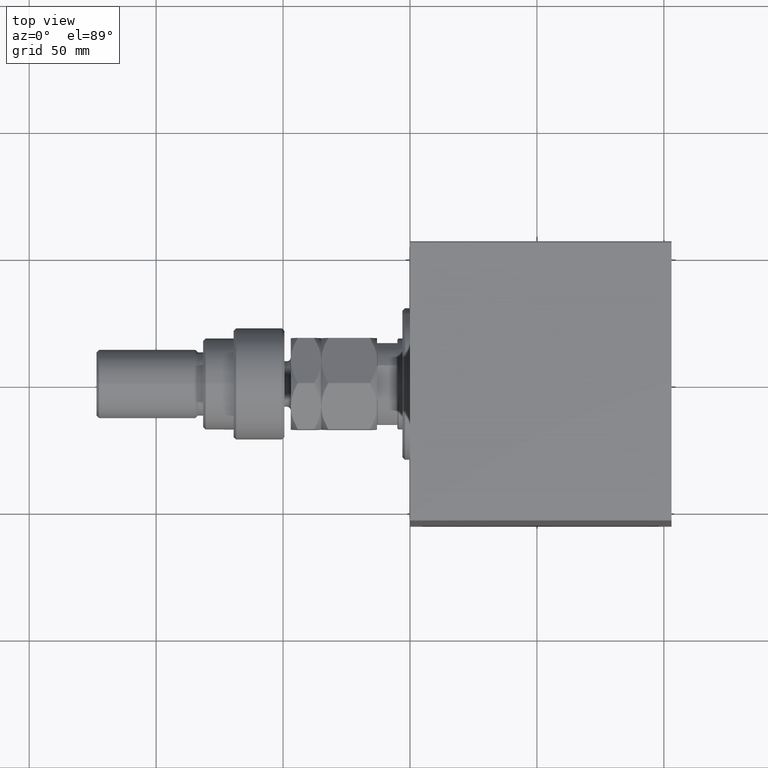
[diagram: clean part render]
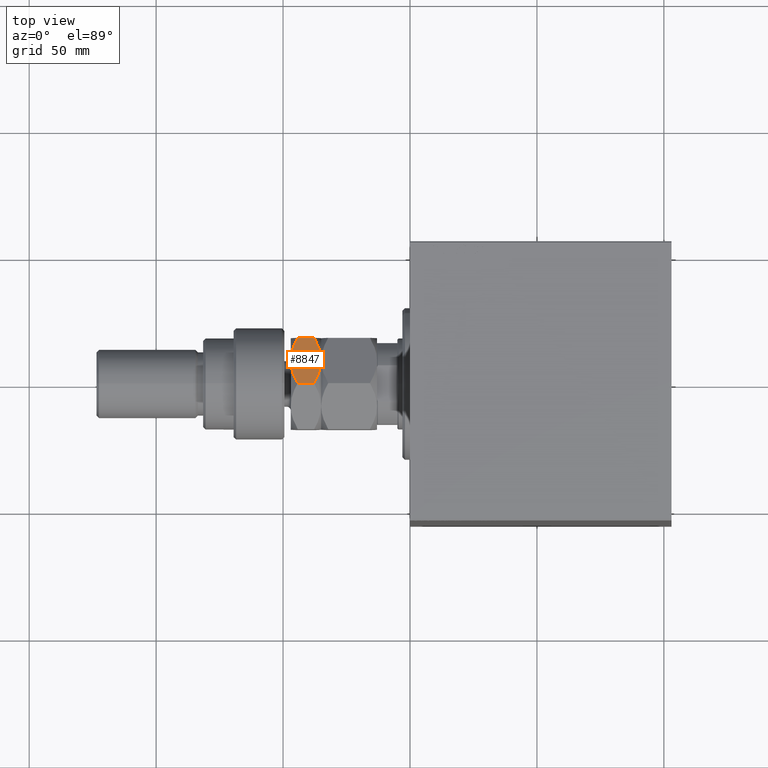
[diagram: same view with one face highlighted and labeled with its STEP entity id]
A machine part, top view. The second image highlights one B-rep face of the part: STEP entity #8847.
In plain terms, the highlighted planar face has unit normal (-0, -0.5, -0.866).
Its self-contained STEP definition (entity closure, byte-faithful):
#933 = CARTESIAN_POINT ( 'NONE',  ( 10.56546083169953754, 14.68463803553234648, 22.00000000000000000 ) ) ;
#1322 = CARTESIAN_POINT ( 'NONE',  ( 1.409696000463986243, 19.97072132548310108, 32.02927867451695931 ) ) ;
#1357 = CARTESIAN_POINT ( 'NONE',  ( 10.97671975407794953, 14.44719758599053705, 33.86127740090142879 ) ) ;
#1875 = CARTESIAN_POINT ( 'NONE',  ( 9.000000000000000000, 15.58845726811989074, 22.00000000000000000 ) ) ;
#2042 = DIRECTION ( 'NONE',  ( -0.000000000000000000, -0.000000000000000000, -1.000000000000000000 ) ) ;
#2373 = CARTESIAN_POINT ( 'NONE',  ( 8.209538469370126990, 16.04483044561309413, 22.01733285647408778 ) ) ;
#4130 = VECTOR ( 'NONE', #2042, 1000.000000000000000 ) ;
#4456 = CARTESIAN_POINT ( 'NONE',  ( 10.58425150785354418, 14.67378923359657783, 33.91305310988184374 ) ) ;
#4519 = DIRECTION ( 'NONE',  ( -0.000000000000000000, -0.000000000000000000, -1.000000000000000000 ) ) ;
#4749 = CARTESIAN_POINT ( 'NONE',  ( -2.339913671058857151E-16, 20.78460969082652454, 34.00000000000000000 ) ) ;
#4917 = CARTESIAN_POINT ( 'NONE',  ( 12.14199022028319597, 13.77442836864821629, 33.65943689774473313 ) ) ;
#5108 = VERTEX_POINT ( 'NONE', #20388 ) ;
#5230 = CARTESIAN_POINT ( 'NONE',  ( 1.411330396252048036, 19.96977770663490404, 23.96977770663490404 ) ) ;
#5347 = CARTESIAN_POINT ( 'NONE',  ( 7.434539168300456247, 16.49227650070744033, 34.00000000000000000 ) ) ;
#5384 = CARTESIAN_POINT ( 'NONE',  ( 17.99999999999999645, 10.39230484541326227, 31.21539030917348612 ) ) ;
#7981 = CARTESIAN_POINT ( 'NONE',  ( 12.90267270303527525, 13.33524813246346952, 33.46291444417099115 ) ) ;
#8458 = B_SPLINE_CURVE_WITH_KNOTS ( 'NONE', 3,
 ( #5384, #11517, #40321, #7981, #4917, #1357, #4456, #15770, #30152, #20248 ),
 .UNSPECIFIED., .F., .F.,
 ( 4, 2, 2, 2, 4 ),
 ( 2.544307986796311447E-07, 0.005386537354063074268, 0.008079678815695273339, 0.009426249546511370273, 0.01077282027732746721 ),
 .UNSPECIFIED. ) ;
#8847 = ADVANCED_FACE ( 'NONE', ( #43408 ), #28776, .F. ) ;
#9731 = AXIS2_PLACEMENT_3D ( 'NONE', #29007, #22407, #43874 ) ;
#9975 = CARTESIAN_POINT ( 'NONE',  ( -4.679827342117714303E-16, 20.78460969082652454, 31.21539030917348612 ) ) ;
#11517 = CARTESIAN_POINT ( 'NONE',  ( 16.58866960374794530, 11.20713682960488100, 32.03022229336509952 ) ) ;
#12196 = LINE ( 'NONE', #37231, #4130 ) ;
#12464 = EDGE_CURVE ( 'NONE', #5108, #39833, #8458, .T. ) ;
#13456 = CARTESIAN_POINT ( 'NONE',  ( -4.679827342117714303E-16, 20.78460969082652454, 24.78460969082651744 ) ) ;
#14067 = B_SPLINE_CURVE_WITH_KNOTS ( 'NONE', 3,
 ( #13456, #5230, #20093, #41558, #41330, #42256, #23408, #2373, #19617, #45113 ),
 .UNSPECIFIED., .F., .F.,
 ( 4, 2, 2, 2, 4 ),
 ( 2.544307986814885820E-07, 0.005386537354063076870, 0.008079678815695275074, 0.009426249546511373742, 0.01077282027732747241 ),
 .UNSPECIFIED. ) ;
#15097 = ORIENTED_EDGE ( 'NONE', *, *, #43423, .F. ) ;
#15770 = CARTESIAN_POINT ( 'NONE',  ( 9.790461530629874787, 15.13208409062668913, 33.98266714352592288 ) ) ;
#16886 = CARTESIAN_POINT ( 'NONE',  ( 9.000000000000000000, 15.58845726811989074, 22.00000000000000000 ) ) ;
#18248 = EDGE_CURVE ( 'NONE', #24705, #29042, #29408, .T. ) ;
#18471 = ORIENTED_EDGE ( 'NONE', *, *, #27379, .T. ) ;
#18876 = B_SPLINE_CURVE_WITH_KNOTS ( 'NONE', 3,
 ( #27928, #5347, #42319, #26354, #1322, #9975 ),
 .UNSPECIFIED., .F., .F.,
 ( 4, 2, 4 ),
 ( 0.01077282027732746721, 0.01612137750481873119, 0.02146993473230999344 ),
 .UNSPECIFIED. ) ;
#18887 = CARTESIAN_POINT ( 'NONE',  ( 15.13928418966202649, 12.04393988858690179, 23.27257470150423302 ) ) ;
#19617 = CARTESIAN_POINT ( 'NONE',  ( 8.605874323383769564, 15.81600583360881807, 22.00000000000000000 ) ) ;
#20093 = CARTESIAN_POINT ( 'NONE',  ( 2.854601888853811165, 19.13650452186756112, 23.27738307788986916 ) ) ;
#20248 = CARTESIAN_POINT ( 'NONE',  ( 8.999999999999998224, 15.58845726811989074, 34.00000000000000000 ) ) ;
#20388 = CARTESIAN_POINT ( 'NONE',  ( 17.99999999999999645, 10.39230484541326227, 31.21539030917348612 ) ) ;
#20875 = ORIENTED_EDGE ( 'NONE', *, *, #12464, .F. ) ;
#20985 = EDGE_CURVE ( 'NONE', #39244, #24705, #14067, .T. ) ;
#22407 = DIRECTION ( 'NONE',  ( -0.5000000000000001110, -0.8660254037844387076, 0.000000000000000000 ) ) ;
#23408 = CARTESIAN_POINT ( 'NONE',  ( 7.415748492146456705, 16.50312530264319832, 22.08694689011815271 ) ) ;
#24705 = VERTEX_POINT ( 'NONE', #16886 ) ;
#25301 = VECTOR ( 'NONE', #4519, 1000.000000000000000 ) ;
#25449 = ORIENTED_EDGE ( 'NONE', *, *, #18248, .F. ) ;
#26196 = ORIENTED_EDGE ( 'NONE', *, *, #29226, .F. ) ;
#26354 = CARTESIAN_POINT ( 'NONE',  ( 2.860715810337965070, 19.13297464765287259, 32.72742529849575988 ) ) ;
#27092 = CARTESIAN_POINT ( 'NONE',  ( -4.679827342117714303E-16, 20.78460969082652454, 24.78460969082651744 ) ) ;
#27379 = EDGE_CURVE ( 'NONE', #5108, #29042, #12196, .T. ) ;
#27928 = CARTESIAN_POINT ( 'NONE',  ( 8.999999999999998224, 15.58845726811989074, 34.00000000000000000 ) ) ;
#28776 = PLANE ( 'NONE',  #9731 ) ;
#29007 = CARTESIAN_POINT ( 'NONE',  ( 17.99999999999999645, 10.39230484541326227, 34.00000000000000000 ) ) ;
#29042 = VERTEX_POINT ( 'NONE', #39353 ) ;
#29226 = EDGE_CURVE ( 'NONE', #39833, #37781, #18876, .T. ) ;
#29245 = ORIENTED_EDGE ( 'NONE', *, *, #20985, .F. ) ;
#29408 = B_SPLINE_CURVE_WITH_KNOTS ( 'NONE', 3,
 ( #1875, #933, #29502, #18887, #43905, #33281 ),
 .UNSPECIFIED., .F., .F.,
 ( 4, 2, 4 ),
 ( 0.01077282027732747241, 0.01612137750481873466, 0.02146993473230999691 ),
 .UNSPECIFIED. ) ;
#29502 = CARTESIAN_POINT ( 'NONE',  ( 12.10430252359947723, 13.79618737047369947, 22.27639590712157869 ) ) ;
#30152 = CARTESIAN_POINT ( 'NONE',  ( 9.394125676616228660, 15.36090870263096697, 34.00000000000000711 ) ) ;
#32654 = CARTESIAN_POINT ( 'NONE',  ( -4.679827342117714303E-16, 20.78460969082652454, 31.21539030917348612 ) ) ;
#33281 = CARTESIAN_POINT ( 'NONE',  ( 17.99999999999999645, 10.39230484541326227, 24.78460969082651744 ) ) ;
#33535 = CARTESIAN_POINT ( 'NONE',  ( 8.999999999999998224, 15.58845726811989074, 34.00000000000000000 ) ) ;
#37231 = CARTESIAN_POINT ( 'NONE',  ( 17.99999999999999645, 10.39230484541326227, 34.00000000000000000 ) ) ;
#37781 = VERTEX_POINT ( 'NONE', #32654 ) ;
#39244 = VERTEX_POINT ( 'NONE', #27092 ) ;
#39353 = CARTESIAN_POINT ( 'NONE',  ( 17.99999999999999645, 10.39230484541326227, 24.78460969082651744 ) ) ;
#39833 = VERTEX_POINT ( 'NONE', #33535 ) ;
#40151 = LINE ( 'NONE', #4749, #25301 ) ;
#40321 = CARTESIAN_POINT ( 'NONE',  ( 15.14539811114618217, 12.04041001437222214, 32.72261692211013440 ) ) ;
#41330 = CARTESIAN_POINT ( 'NONE',  ( 5.858009779716799592, 17.40248616759156874, 22.34056310225525621 ) ) ;
#41558 = CARTESIAN_POINT ( 'NONE',  ( 5.097327296964724752, 17.84166640377631197, 22.53708555582900885 ) ) ;
#42256 = CARTESIAN_POINT ( 'NONE',  ( 7.023280245922046916, 16.72971695024925154, 22.13872259909857121 ) ) ;
#42319 = CARTESIAN_POINT ( 'NONE',  ( 5.895697476400520998, 17.38072716576608201, 33.72360409287841065 ) ) ;
#43408 = FACE_OUTER_BOUND ( 'NONE', #45700, .T. ) ;
#43423 = EDGE_CURVE ( 'NONE', #37781, #39244, #40151, .T. ) ;
#43874 = DIRECTION ( 'NONE',  ( 0.8660254037844385966, -0.5000000000000000000, 0.000000000000000000 ) ) ;
#43905 = CARTESIAN_POINT ( 'NONE',  ( 16.59030399953601176, 11.20619321075668218, 23.97072132548304779 ) ) ;
#45113 = CARTESIAN_POINT ( 'NONE',  ( 9.000000000000000000, 15.58845726811989074, 22.00000000000000000 ) ) ;
#45700 = EDGE_LOOP ( 'NONE', ( #29245, #15097, #26196, #20875, #18471, #25449 ) ) ;